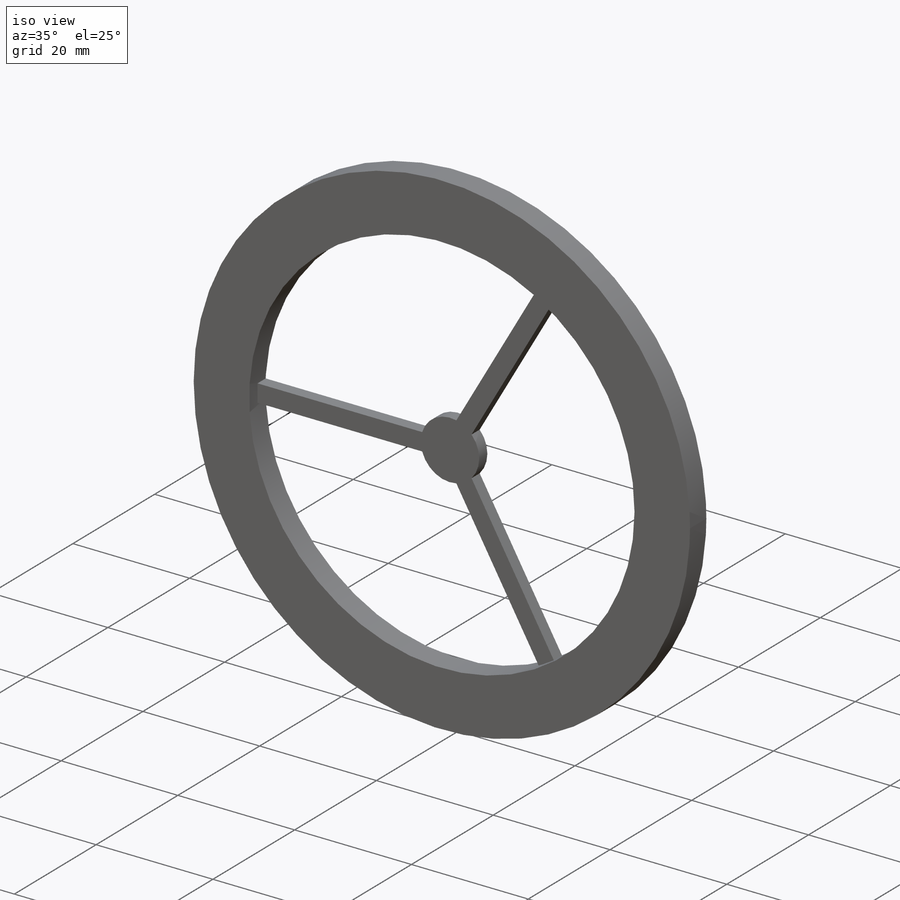
[diagram: iso view]
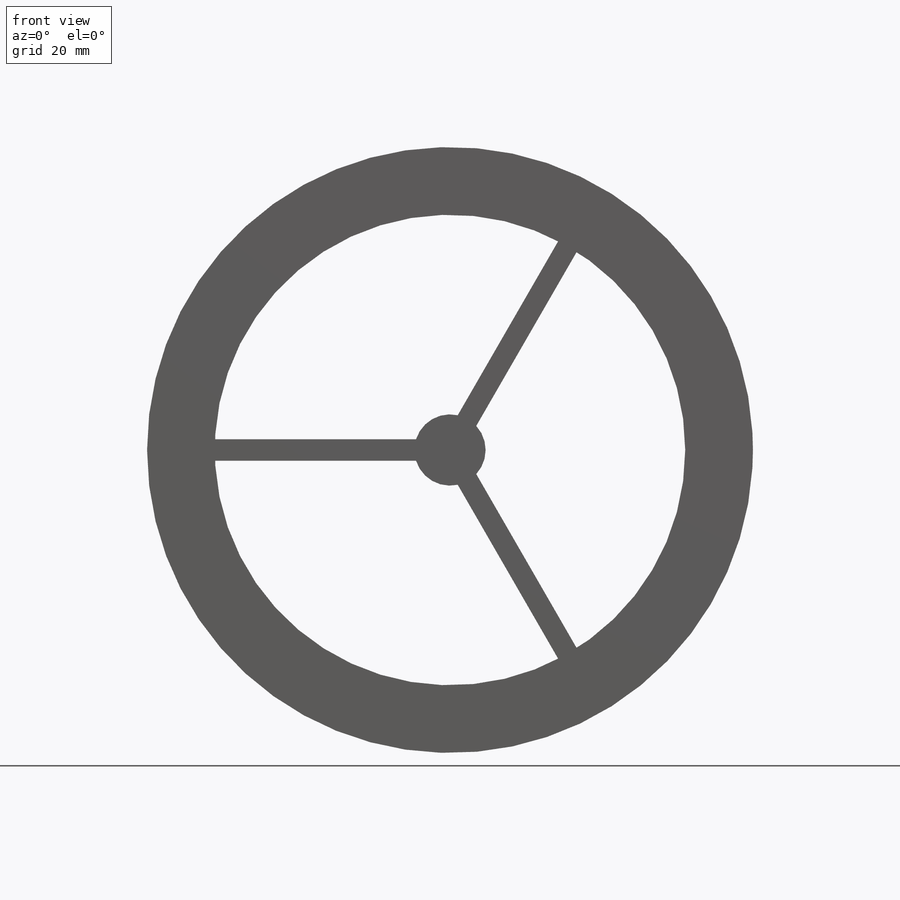
[diagram: front view]
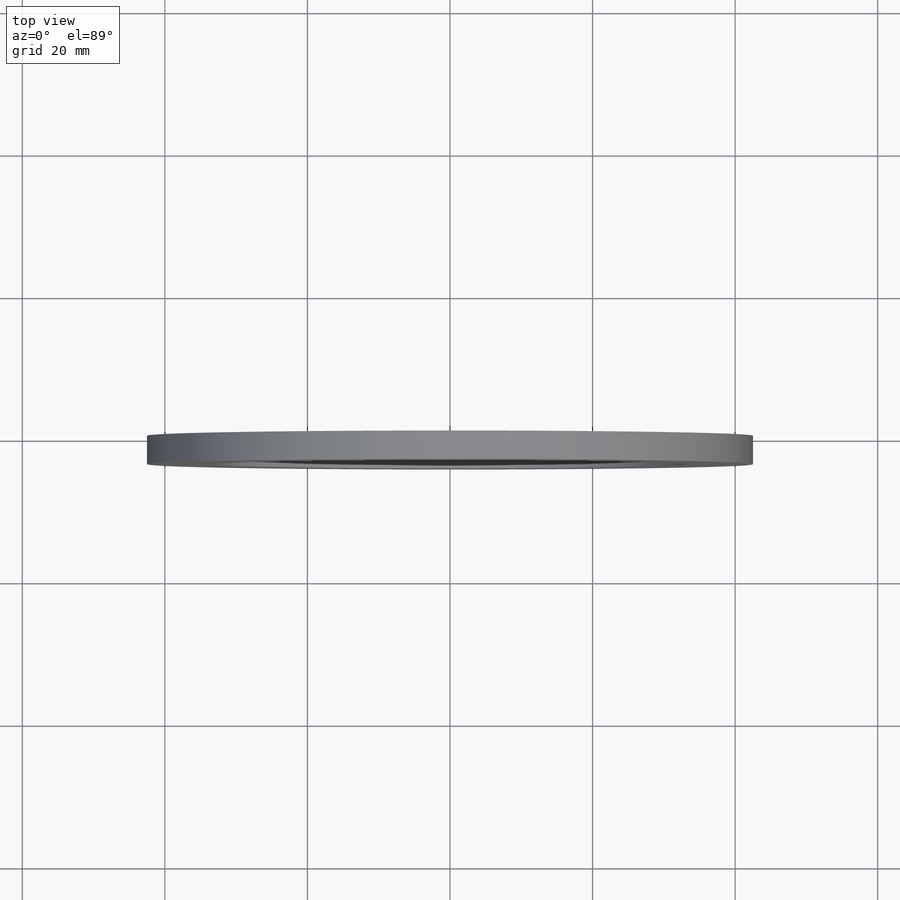
[diagram: top view]
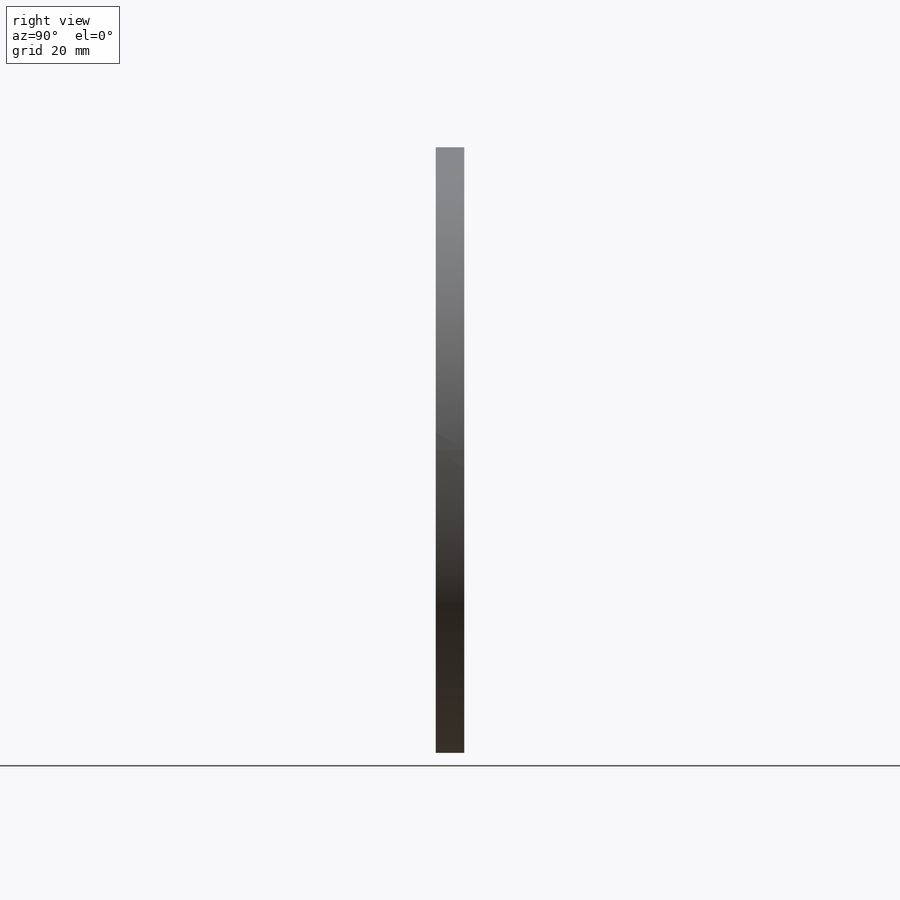
[diagram: right view]
SOLIDWORKS PART (.sldprt)
format: sldprt  version: not decoded by parser v0  size: 251,904 bytes
history: native  units: mm
features: sketch x4, extrude x2, cut_extrude x2, material x1 + 1 further entry (+15 scaffold rows collapsed)
feature tree (25):
  scaffold x15  (default folders/planes/origin — collapsed)
  material  "1023 Carbon Steel Sheet (SS)"
  "Annotations"  RD1=85mm RD2=4mm
  sketch  "Sketch1"  dims[D1=85.0mm]
  extrude  "Boss-Extrude1"  Depth=4mm
  sketch  "Sketch3"  dims[c1.D1=~19.933859mm c1.D3=66.0mm c2.D1=60.0deg c2.D2=60.0deg]
  cut_extrude  "Cut-Extrude2"  [1 undecoded]
  sketch  "Sketch4"  dims[c1.D5=80.0mm c1.D1=60.0deg c1.D2=60.0deg c1.D4=3.0mm c2.D5=2.0mm c2.D3=3.0]
  sketch  "Sketch5"  dims[D1=66.0mm]
  extrude  "Boss-Extrude3"  [1 undecoded]
  cut_extrude  "Cut-Extrude4"  Depth=2mm
decode coverage: 6 of 8 modeling features carry decoded parameters; 1 rows unclassified (native names shown)
note: ~ marks probable driven/reference dimensions
note: 2 parameter values undecoded
note: suppression state not decoded; provenance and decode notes live in map.json
